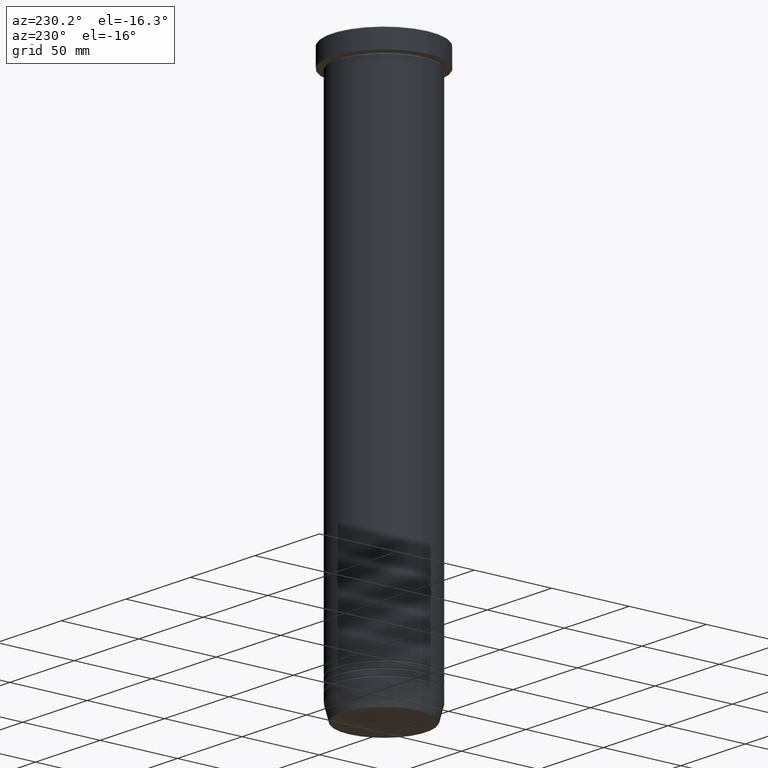
[diagram: clean part render]
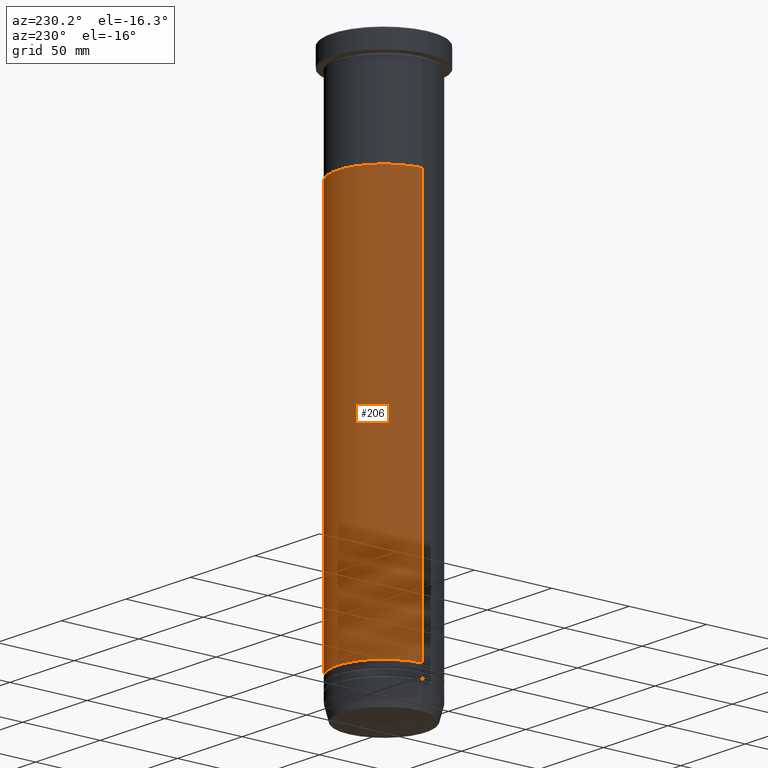
[diagram: same view with one face highlighted and labeled with its STEP entity id]
A machine part, auxiliary view. The second image highlights one B-rep face of the part: STEP entity #206.
In plain terms, the highlighted cylindrical surface (partial cylindrical patch) has radius 30 mm, axis along (-0, -0, 1).
Its self-contained STEP definition (entity closure, byte-faithful):
#5 = CARTESIAN_POINT ( 'NONE',  ( 0.000000000000000000, 0.000000000000000000, -70.00000000000000000 ) ) ;
#81 = DIRECTION ( 'NONE',  ( 1.000000000000000000, 0.000000000000000000, 0.000000000000000000 ) ) ;
#124 = EDGE_CURVE ( 'NONE', #441, #379, #694, .T. ) ;
#145 = DIRECTION ( 'NONE',  ( 1.000000000000000000, 0.000000000000000000, 0.000000000000000000 ) ) ;
#188 = LINE ( 'NONE', #1002, #884 ) ;
#192 = ORIENTED_EDGE ( 'NONE', *, *, #551, .F. ) ;
#197 = ORIENTED_EDGE ( 'NONE', *, *, #743, .T. ) ;
#206 = ADVANCED_FACE ( 'NONE', ( #690 ), #382, .T. ) ;
#216 = CARTESIAN_POINT ( 'NONE',  ( 29.99999999999999289, 0.000000000000000000, -326.0000000000000568 ) ) ;
#260 = DIRECTION ( 'NONE',  ( -0.000000000000000000, -0.000000000000000000, 1.000000000000000000 ) ) ;
#304 = DIRECTION ( 'NONE',  ( -0.000000000000000000, -0.000000000000000000, 1.000000000000000000 ) ) ;
#307 = CARTESIAN_POINT ( 'NONE',  ( 0.000000000000000000, 0.000000000000000000, -326.0000000000000568 ) ) ;
#353 = CIRCLE ( 'NONE', #847, 29.99999999999999289 ) ;
#375 = CARTESIAN_POINT ( 'NONE',  ( -29.99999999999999289, 3.673940397442059178E-15, -326.0000000000000568 ) ) ;
#379 = VERTEX_POINT ( 'NONE', #452 ) ;
#382 = CYLINDRICAL_SURFACE ( 'NONE', #601, 29.99999999999999645 ) ;
#402 = VERTEX_POINT ( 'NONE', #709 ) ;
#427 = VERTEX_POINT ( 'NONE', #375 ) ;
#441 = VERTEX_POINT ( 'NONE', #216 ) ;
#452 = CARTESIAN_POINT ( 'NONE',  ( 30.00000000000000000, 0.000000000000000000, -70.00000000000000000 ) ) ;
#483 = DIRECTION ( 'NONE',  ( -0.000000000000000000, -0.000000000000000000, 1.000000000000000000 ) ) ;
#485 = CIRCLE ( 'NONE', #615, 30.00000000000000000 ) ;
#504 = EDGE_LOOP ( 'NONE', ( #780, #197, #192, #885 ) ) ;
#551 = EDGE_CURVE ( 'NONE', #379, #402, #485, .T. ) ;
#601 = AXIS2_PLACEMENT_3D ( 'NONE', #1034, #613, #145 ) ;
#613 = DIRECTION ( 'NONE',  ( -0.000000000000000000, -0.000000000000000000, 1.000000000000000000 ) ) ;
#615 = AXIS2_PLACEMENT_3D ( 'NONE', #5, #483, #81 ) ;
#690 = FACE_OUTER_BOUND ( 'NONE', #504, .T. ) ;
#694 = LINE ( 'NONE', #1038, #880 ) ;
#709 = CARTESIAN_POINT ( 'NONE',  ( -30.00000000000000355, 3.673940397442059967E-15, -70.00000000000000000 ) ) ;
#743 = EDGE_CURVE ( 'NONE', #427, #402, #188, .T. ) ;
#778 = DIRECTION ( 'NONE',  ( 1.000000000000000000, 0.000000000000000000, 0.000000000000000000 ) ) ;
#780 = ORIENTED_EDGE ( 'NONE', *, *, #788, .T. ) ;
#788 = EDGE_CURVE ( 'NONE', #441, #427, #353, .T. ) ;
#847 = AXIS2_PLACEMENT_3D ( 'NONE', #307, #1044, #778 ) ;
#880 = VECTOR ( 'NONE', #304, 1000.000000000000000 ) ;
#884 = VECTOR ( 'NONE', #260, 1000.000000000000000 ) ;
#885 = ORIENTED_EDGE ( 'NONE', *, *, #124, .F. ) ;
#1002 = CARTESIAN_POINT ( 'NONE',  ( -29.99999999999999645, 3.673940397442059178E-15, 0.000000000000000000 ) ) ;
#1034 = CARTESIAN_POINT ( 'NONE',  ( 0.000000000000000000, 0.000000000000000000, 0.000000000000000000 ) ) ;
#1038 = CARTESIAN_POINT ( 'NONE',  ( 29.99999999999999645, 0.000000000000000000, 0.000000000000000000 ) ) ;
#1044 = DIRECTION ( 'NONE',  ( -0.000000000000000000, -0.000000000000000000, 1.000000000000000000 ) ) ;